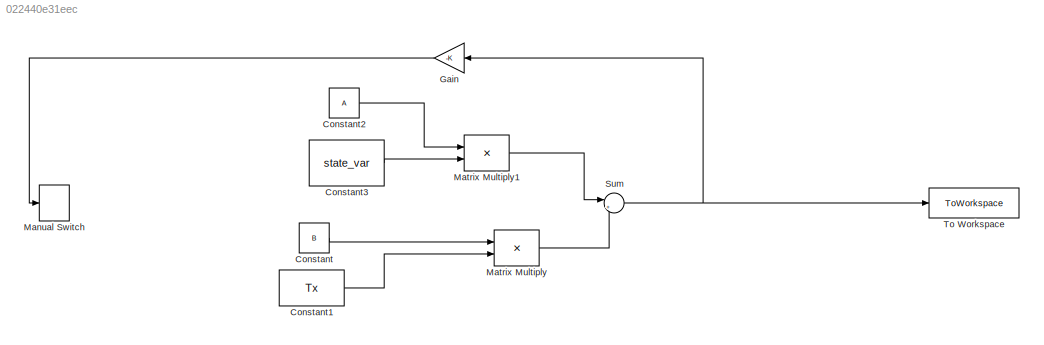
MODEL slx_022440e31eec
KIND model
CONFIG AbsTol = auto
CONFIG EnableMultiTasking = off
CONFIG FixedStep = auto
CONFIG MaxStep = auto
CONFIG MinStep = auto
CONFIG RelTol = 1e-3
CONFIG SampleTimeConstraint = Unconstrained
CONFIG SolverName = VariableStepAuto
CONFIG StartTime = 0.0
CONFIG StopTime = 1
BLOCK [Constant] Constant
  Value = B
BLOCK [Constant] Constant1
  Value = Tx
BLOCK [Constant] Constant2
  Value = A
BLOCK [Constant] Constant3
  Value = state_var
  VectorParams1D = off
BLOCK [Gain] Gain
  Gain = -K
BLOCK [ManualSwitch] Manual Switch
  CurrentSetting = 0
BLOCK [Product] Matrix Multiply
  Multiplication = Matrix(*)
  Ports = [2, 1]
BLOCK [Product] Matrix Multiply1
  Multiplication = Matrix(*)
  Ports = [2, 1]
BLOCK [Sum] Sum
  Inputs = |++
  Ports = [2, 1]
BLOCK [ToWorkspace] To Workspace
  FixptAsFi = on
  MaxDataPoints = inf
  Ports = [1]
  SampleTime = -1
  VariableName = simout
LINE Constant1:1 -> Matrix Multiply:2
LINE Constant2:1 -> Matrix Multiply1:1
LINE Constant3:1 -> Matrix Multiply1:2
LINE Constant:1 -> Matrix Multiply:1
LINE Gain:1 -> Manual Switch:1
LINE Matrix Multiply1:1 -> Sum:1
LINE Matrix Multiply:1 -> Sum:2
NET Sum:1 -> Gain:1, To Workspace:1
note: NET lines group one-source signal fan-out (src -> all destinations, sorted); 1:1 wires keep LINE
